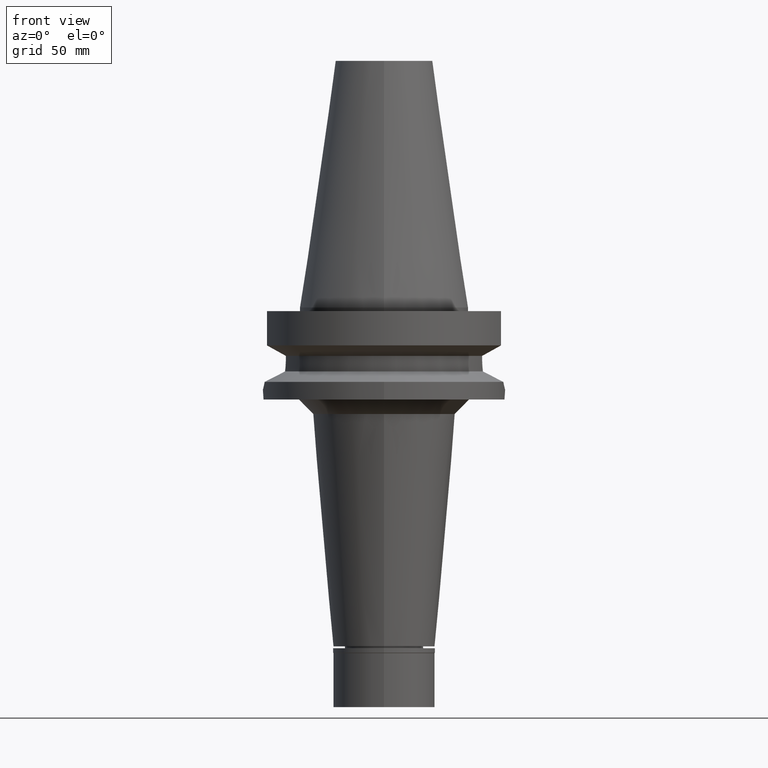
[diagram: clean part render]
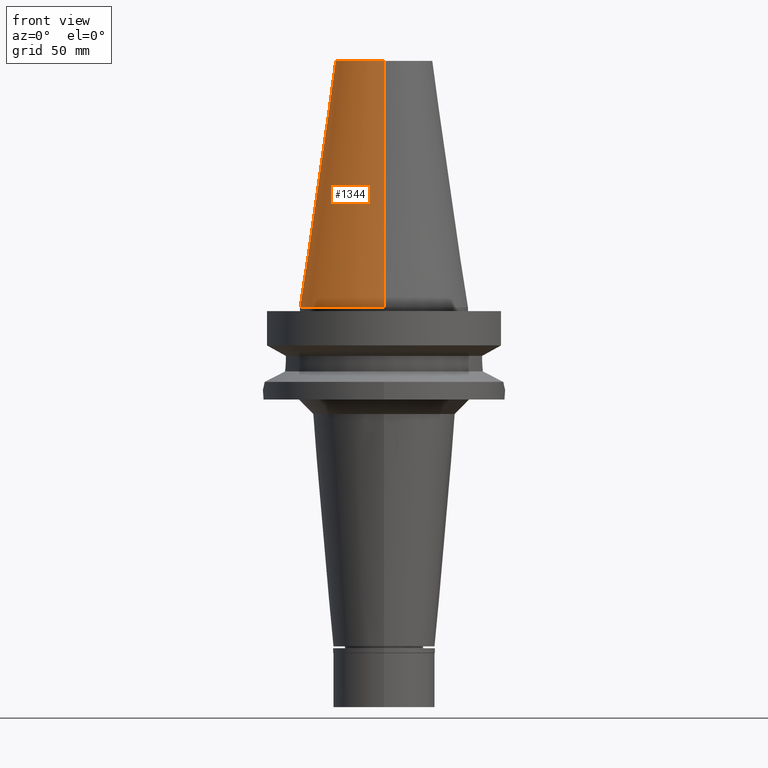
[diagram: same view with one face highlighted and labeled with its STEP entity id]
A machine part, front view. The second image highlights one B-rep face of the part: STEP entity #1344.
In plain terms, the highlighted conical surface has half-angle 8.297 deg.
Its self-contained STEP definition (entity closure, byte-faithful):
#71 = ORIENTED_EDGE ( 'NONE', *, *, #1568, .F. ) ;
#116 = CONICAL_SURFACE ( 'NONE', #1928, 27.50221485948000222, 0.1448099680379422438 ) ;
#137 = DIRECTION ( 'NONE',  ( 0.0000000000000000000, 0.1443043893538948075, -0.9895333461855641000 ) ) ;
#230 = CARTESIAN_POINT ( 'NONE',  ( 0.0000000000000000000, 1.847992019912999597E-14, 101.7999999999999972 ) ) ;
#440 = DIRECTION ( 'NONE',  ( 0.0000000000000000000, -1.000000000000000000, 0.0000000000000000000 ) ) ;
#510 = CARTESIAN_POINT ( 'NONE',  ( 0.0000000000000000000, 1.847992019912999597E-14, 50.89999999999999858 ) ) ;
#643 = DIRECTION ( 'NONE',  ( 0.0000000000000000000, -1.000000000000000000, 0.0000000000000000000 ) ) ;
#646 = DIRECTION ( 'NONE',  ( 0.0000000000000000000, 0.0000000000000000000, -1.000000000000000000 ) ) ;
#788 = CARTESIAN_POINT ( 'NONE',  ( 0.0000000000000000000, 20.07942971896000017, 101.7999999999999972 ) ) ;
#868 = DIRECTION ( 'NONE',  ( 0.0000000000000000000, -1.000000000000000000, 0.0000000000000000000 ) ) ;
#973 = ORIENTED_EDGE ( 'NONE', *, *, #1415, .T. ) ;
#974 = ORIENTED_EDGE ( 'NONE', *, *, #1905, .T. ) ;
#995 = LINE ( 'NONE', #2719, #2750 ) ;
#1035 = LINE ( 'NONE', #788, #2652 ) ;
#1189 = EDGE_LOOP ( 'NONE', ( #1491, #71, #974, #973 ) ) ;
#1202 = CIRCLE ( 'NONE', #1614, 20.07942971896000017 ) ;
#1277 = DIRECTION ( 'NONE',  ( 0.0000000000000000000, 0.0000000000000000000, -1.000000000000000000 ) ) ;
#1344 = ADVANCED_FACE ( 'NONE', ( #2741 ), #116, .T. ) ;
#1415 = EDGE_CURVE ( 'NONE', #1892, #2083, #1035, .T. ) ;
#1491 = ORIENTED_EDGE ( 'NONE', *, *, #2852, .F. ) ;
#1511 = AXIS2_PLACEMENT_3D ( 'NONE', #3089, #646, #868 ) ;
#1568 = EDGE_CURVE ( 'NONE', #2848, #1973, #995, .T. ) ;
#1607 = CARTESIAN_POINT ( 'NONE',  ( 0.0000000000000000000, 34.92499999999999716, 4.831690603169000342E-13 ) ) ;
#1614 = AXIS2_PLACEMENT_3D ( 'NONE', #230, #1970, #440 ) ;
#1725 = CARTESIAN_POINT ( 'NONE',  ( 0.0000000000000000000, 20.07942971896000017, 101.7999999999999972 ) ) ;
#1892 = VERTEX_POINT ( 'NONE', #1725 ) ;
#1905 = EDGE_CURVE ( 'NONE', #2848, #1892, #1202, .T. ) ;
#1928 = AXIS2_PLACEMENT_3D ( 'NONE', #510, #1277, #643 ) ;
#1970 = DIRECTION ( 'NONE',  ( 0.0000000000000000000, 0.0000000000000000000, -1.000000000000000000 ) ) ;
#1973 = VERTEX_POINT ( 'NONE', #2319 ) ;
#2083 = VERTEX_POINT ( 'NONE', #1607 ) ;
#2146 = CIRCLE ( 'NONE', #1511, 34.92499999999999716 ) ;
#2319 = CARTESIAN_POINT ( 'NONE',  ( 0.0000000000000000000, -34.92499999999999716, 4.831690603169000342E-13 ) ) ;
#2504 = DIRECTION ( 'NONE',  ( 0.0000000000000000000, -0.1443043893538948075, -0.9895333461855641000 ) ) ;
#2652 = VECTOR ( 'NONE', #137, 1000.000000000000114 ) ;
#2719 = CARTESIAN_POINT ( 'NONE',  ( 0.0000000000000000000, -20.07942971896000017, 101.7999999999999972 ) ) ;
#2741 = FACE_OUTER_BOUND ( 'NONE', #1189, .T. ) ;
#2750 = VECTOR ( 'NONE', #2504, 1000.000000000000114 ) ;
#2848 = VERTEX_POINT ( 'NONE', #3104 ) ;
#2852 = EDGE_CURVE ( 'NONE', #1973, #2083, #2146, .T. ) ;
#3089 = CARTESIAN_POINT ( 'NONE',  ( 0.0000000000000000000, 1.847992019912999597E-14, 3.979039320256999774E-13 ) ) ;
#3104 = CARTESIAN_POINT ( 'NONE',  ( 0.0000000000000000000, -20.07942971896000017, 101.7999999999999972 ) ) ;